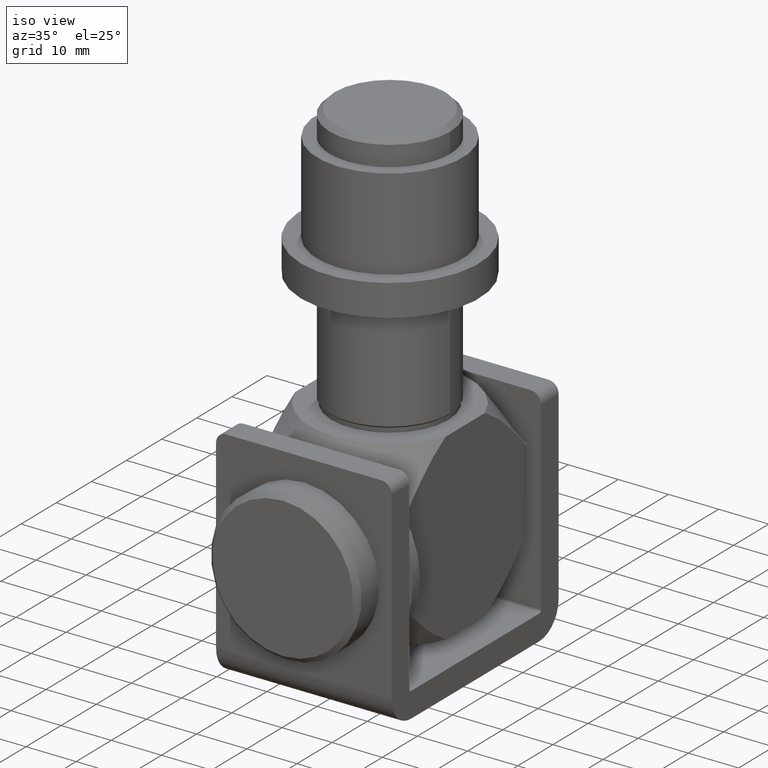
[diagram: clean part render]
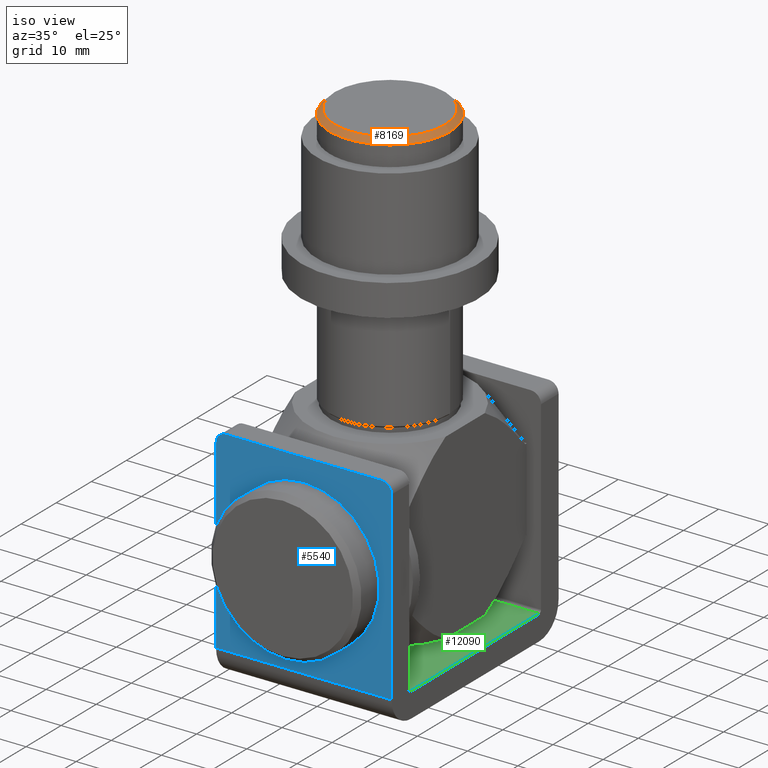
[diagram: same view with three faces highlighted in distinct colors, each labeled with its STEP entity id]
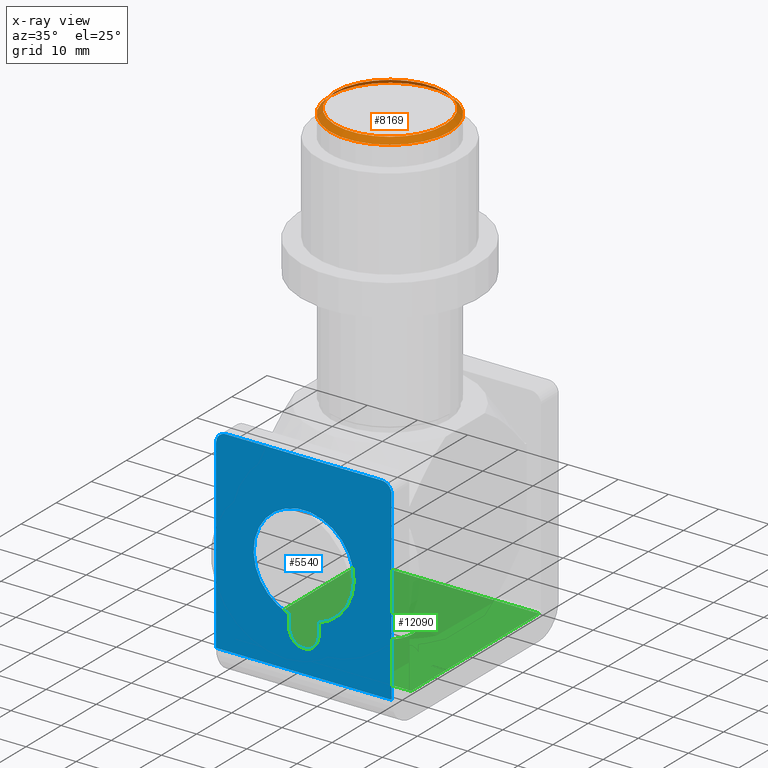
[diagram: x-ray of the same camera — body ghosted, the three highlighted faces saturated]
A machine part, iso view with three faces highlighted in distinct colors.
The next image is the same camera in x-ray (body ghosted, the three faces saturated) — at least one of them is partly hidden behind the body in this view.
Their STEP definitions:

[orange] entity #8169 — the highlighted conical surface has half-angle 45 deg.
#758 = DIRECTION ( 'NONE',  ( 0.000000000000000000, 0.000000000000000000, -1.000000000000000000 ) ) ;
#1041 = CIRCLE ( 'NONE', #6038, 11.00000000000001066 ) ;
#1842 = ORIENTED_EDGE ( 'NONE', *, *, #5073, .F. ) ;
#2077 = VERTEX_POINT ( 'NONE', #4092 ) ;
#3279 = EDGE_LOOP ( 'NONE', ( #1842 ) ) ;
#4092 = CARTESIAN_POINT ( 'NONE',  ( 12.00000000000000178, 0.000000000000000000, 70.25000000000000000 ) ) ;
#5073 = EDGE_CURVE ( 'NONE', #2077, #2077, #9360, .T. ) ;
#6038 = AXIS2_PLACEMENT_3D ( 'NONE', #6406, #11042, #9853 ) ;
#6366 = DIRECTION ( 'NONE',  ( 1.000000000000000000, 0.000000000000000000, 0.000000000000000000 ) ) ;
#6406 = CARTESIAN_POINT ( 'NONE',  ( 0.000000000000000000, 0.000000000000000000, 71.25000000000000000 ) ) ;
#7127 = VERTEX_POINT ( 'NONE', #14038 ) ;
#7676 = CARTESIAN_POINT ( 'NONE',  ( 0.000000000000000000, 0.000000000000000000, 71.25000000000000000 ) ) ;
#8169 = ADVANCED_FACE ( 'NONE', ( #13381, #10320 ), #10874, .T. ) ;
#8225 = AXIS2_PLACEMENT_3D ( 'NONE', #7676, #758, #14399 ) ;
#9360 = CIRCLE ( 'NONE', #11553, 12.00000000000000178 ) ;
#9613 = EDGE_LOOP ( 'NONE', ( #10637 ) ) ;
#9853 = DIRECTION ( 'NONE',  ( 1.000000000000000000, 0.000000000000000000, 0.000000000000000000 ) ) ;
#10320 = FACE_BOUND ( 'NONE', #9613, .T. ) ;
#10637 = ORIENTED_EDGE ( 'NONE', *, *, #13308, .F. ) ;
#10874 = CONICAL_SURFACE ( 'NONE', #8225, 11.00000000000001066, 0.7853981633974509435 ) ;
#11042 = DIRECTION ( 'NONE',  ( 0.000000000000000000, 0.000000000000000000, 1.000000000000000000 ) ) ;
#11553 = AXIS2_PLACEMENT_3D ( 'NONE', #14254, #12086, #6366 ) ;
#12086 = DIRECTION ( 'NONE',  ( 0.000000000000000000, 0.000000000000000000, -1.000000000000000000 ) ) ;
#13308 = EDGE_CURVE ( 'NONE', #7127, #7127, #1041, .T. ) ;
#13381 = FACE_OUTER_BOUND ( 'NONE', #3279, .T. ) ;
#14038 = CARTESIAN_POINT ( 'NONE',  ( 11.00000000000001066, 0.000000000000000000, 71.25000000000000000 ) ) ;
#14254 = CARTESIAN_POINT ( 'NONE',  ( 0.000000000000000000, 0.000000000000000000, 70.25000000000000000 ) ) ;
#14399 = DIRECTION ( 'NONE',  ( -1.000000000000000000, 0.000000000000000000, 0.000000000000000000 ) ) ;

[blue] entity #5540 — the highlighted planar face has unit normal (0, -1, 0).
#15 = AXIS2_PLACEMENT_3D ( 'NONE', #10182, #8992, #7990 ) ;
#889 = VERTEX_POINT ( 'NONE', #11197 ) ;
#894 = LINE ( 'NONE', #10870, #12408 ) ;
#912 = ORIENTED_EDGE ( 'NONE', *, *, #14257, .T. ) ;
#1301 = CIRCLE ( 'NONE', #2318, 2.000000000000001776 ) ;
#1398 = CARTESIAN_POINT ( 'NONE',  ( 17.50000000000000000, -23.75000000000000711, 5.499999999999995559 ) ) ;
#1419 = LINE ( 'NONE', #8717, #8091 ) ;
#1425 = CARTESIAN_POINT ( 'NONE',  ( 3.000000000000000000, -23.75000000000000711, 12.99999999999999822 ) ) ;
#1489 = CARTESIAN_POINT ( 'NONE',  ( -17.50000000000000000, -23.75000000000000711, 42.49999999999998579 ) ) ;
#1649 = VERTEX_POINT ( 'NONE', #11433 ) ;
#1867 = ORIENTED_EDGE ( 'NONE', *, *, #14501, .T. ) ;
#2016 = DIRECTION ( 'NONE',  ( 0.000000000000000000, 0.000000000000000000, -1.000000000000000000 ) ) ;
#2211 = AXIS2_PLACEMENT_3D ( 'NONE', #1398, #10503, #12704 ) ;
#2233 = VERTEX_POINT ( 'NONE', #1489 ) ;
#2272 = LINE ( 'NONE', #4164, #14155 ) ;
#2318 = AXIS2_PLACEMENT_3D ( 'NONE', #4509, #12448, #6723 ) ;
#2580 = CARTESIAN_POINT ( 'NONE',  ( 3.000000000000000000, -23.75000000000000711, -2.014613153511925167E-15 ) ) ;
#2845 = VECTOR ( 'NONE', #13987, 1000.000000000000000 ) ;
#2943 = CARTESIAN_POINT ( 'NONE',  ( 3.000000000000000000, -23.75000000000000355, 15.46060798583053497 ) ) ;
#3153 = CARTESIAN_POINT ( 'NONE',  ( -3.000000000000000000, -23.75000000000001066, 15.46060798583053497 ) ) ;
#3323 = ORIENTED_EDGE ( 'NONE', *, *, #5633, .F. ) ;
#4077 = EDGE_CURVE ( 'NONE', #889, #10476, #12771, .T. ) ;
#4111 = LINE ( 'NONE', #2580, #2845 ) ;
#4164 = CARTESIAN_POINT ( 'NONE',  ( 17.50000000000000000, -23.75000000000000711, 5.499999999999995559 ) ) ;
#4509 = CARTESIAN_POINT ( 'NONE',  ( -15.50000000000000000, -23.75000000000000711, 42.49999999999998579 ) ) ;
#4596 = DIRECTION ( 'NONE',  ( 0.000000000000000000, 8.482581698997577797E-17, -1.000000000000000000 ) ) ;
#4938 = VERTEX_POINT ( 'NONE', #11882 ) ;
#5077 = DIRECTION ( 'NONE',  ( -1.000000000000000000, -0.000000000000000000, -0.000000000000000000 ) ) ;
#5136 = CARTESIAN_POINT ( 'NONE',  ( 15.50000000000000178, -23.75000000000000711, 42.49999999999998579 ) ) ;
#5285 = EDGE_CURVE ( 'NONE', #12184, #2233, #14210, .T. ) ;
#5414 = FACE_OUTER_BOUND ( 'NONE', #8382, .T. ) ;
#5472 = ORIENTED_EDGE ( 'NONE', *, *, #12405, .T. ) ;
#5540 = ADVANCED_FACE ( 'NONE', ( #9888, #5414 ), #6029, .T. ) ;
#5633 = EDGE_CURVE ( 'NONE', #1649, #12184, #894, .T. ) ;
#5750 = AXIS2_PLACEMENT_3D ( 'NONE', #5136, #11913, #13269 ) ;
#5795 = EDGE_CURVE ( 'NONE', #10476, #4938, #1419, .T. ) ;
#6029 = PLANE ( 'NONE',  #2211 ) ;
#6393 = DIRECTION ( 'NONE',  ( -1.000000000000000000, -0.000000000000000000, -0.000000000000000000 ) ) ;
#6723 = DIRECTION ( 'NONE',  ( 0.000000000000000000, 0.000000000000000000, -1.000000000000000000 ) ) ;
#6751 = ORIENTED_EDGE ( 'NONE', *, *, #4077, .T. ) ;
#7021 = ORIENTED_EDGE ( 'NONE', *, *, #8729, .T. ) ;
#7389 = VECTOR ( 'NONE', #8048, 1000.000000000000000 ) ;
#7859 = AXIS2_PLACEMENT_3D ( 'NONE', #7923, #11378, #2016 ) ;
#7923 = CARTESIAN_POINT ( 'NONE',  ( 0.000000000000000000, -23.75000000000000711, 12.99999999999999822 ) ) ;
#7990 = DIRECTION ( 'NONE',  ( 0.000000000000000000, 0.000000000000000000, 1.000000000000000000 ) ) ;
#8048 = DIRECTION ( 'NONE',  ( 0.000000000000000000, 0.000000000000000000, 1.000000000000000000 ) ) ;
#8091 = VECTOR ( 'NONE', #6393, 1000.000000000000000 ) ;
#8223 = VERTEX_POINT ( 'NONE', #2943 ) ;
#8276 = CIRCLE ( 'NONE', #15, 10.00000000000000178 ) ;
#8382 = EDGE_LOOP ( 'NONE', ( #1867, #6751, #11859, #7021, #9568, #3323 ) ) ;
#8717 = CARTESIAN_POINT ( 'NONE',  ( 17.50000000000000000, -23.75000000000000711, 44.49999999999999289 ) ) ;
#8729 = EDGE_CURVE ( 'NONE', #4938, #2233, #1301, .T. ) ;
#8992 = DIRECTION ( 'NONE',  ( 0.000000000000000000, 1.000000000000000000, -9.912705577010328015E-17 ) ) ;
#9568 = ORIENTED_EDGE ( 'NONE', *, *, #5285, .F. ) ;
#9888 = FACE_BOUND ( 'NONE', #13311, .T. ) ;
#9960 = EDGE_CURVE ( 'NONE', #12375, #11467, #11715, .T. ) ;
#10182 = CARTESIAN_POINT ( 'NONE',  ( 0.000000000000000000, -23.75000000000000355, 24.99999999999999289 ) ) ;
#10233 = CARTESIAN_POINT ( 'NONE',  ( -3.000000000000000000, -23.75000000000000711, 12.99999999999999822 ) ) ;
#10476 = VERTEX_POINT ( 'NONE', #12171 ) ;
#10503 = DIRECTION ( 'NONE',  ( 0.000000000000000000, -1.000000000000000000, 0.000000000000000000 ) ) ;
#10870 = CARTESIAN_POINT ( 'NONE',  ( 17.50000000000000000, -23.75000000000000355, 5.499999999999994671 ) ) ;
#11197 = CARTESIAN_POINT ( 'NONE',  ( 17.50000000000000000, -23.75000000000000711, 42.49999999999998579 ) ) ;
#11378 = DIRECTION ( 'NONE',  ( 0.000000000000000000, -1.000000000000000000, -8.482581698997577797E-17 ) ) ;
#11433 = CARTESIAN_POINT ( 'NONE',  ( 17.50000000000000000, -23.75000000000000355, 5.499999999999994671 ) ) ;
#11451 = CARTESIAN_POINT ( 'NONE',  ( -17.50000000000000000, -23.75000000000000711, 5.499999999999995559 ) ) ;
#11467 = VERTEX_POINT ( 'NONE', #1425 ) ;
#11715 = CIRCLE ( 'NONE', #7859, 2.999999999999999112 ) ;
#11859 = ORIENTED_EDGE ( 'NONE', *, *, #5795, .T. ) ;
#11882 = CARTESIAN_POINT ( 'NONE',  ( -15.50000000000000000, -23.75000000000000711, 44.49999999999999289 ) ) ;
#11913 = DIRECTION ( 'NONE',  ( 0.000000000000000000, -1.000000000000000000, 0.000000000000000000 ) ) ;
#12171 = CARTESIAN_POINT ( 'NONE',  ( 15.50000000000000178, -23.75000000000000711, 44.49999999999999289 ) ) ;
#12184 = VERTEX_POINT ( 'NONE', #12737 ) ;
#12375 = VERTEX_POINT ( 'NONE', #10233 ) ;
#12405 = EDGE_CURVE ( 'NONE', #14451, #8223, #8276, .T. ) ;
#12406 = VECTOR ( 'NONE', #4596, 1000.000000000000000 ) ;
#12408 = VECTOR ( 'NONE', #5077, 1000.000000000000000 ) ;
#12448 = DIRECTION ( 'NONE',  ( 0.000000000000000000, -1.000000000000000000, 0.000000000000000000 ) ) ;
#12544 = EDGE_CURVE ( 'NONE', #14451, #12375, #13998, .T. ) ;
#12704 = DIRECTION ( 'NONE',  ( 0.000000000000000000, -0.000000000000000000, -1.000000000000000000 ) ) ;
#12737 = CARTESIAN_POINT ( 'NONE',  ( -17.50000000000000000, -23.75000000000000355, 5.499999999999994671 ) ) ;
#12771 = CIRCLE ( 'NONE', #5750, 2.000000000000001776 ) ;
#13269 = DIRECTION ( 'NONE',  ( 0.000000000000000000, 0.000000000000000000, -1.000000000000000000 ) ) ;
#13311 = EDGE_LOOP ( 'NONE', ( #14294, #5472, #912, #13755 ) ) ;
#13755 = ORIENTED_EDGE ( 'NONE', *, *, #9960, .F. ) ;
#13798 = CARTESIAN_POINT ( 'NONE',  ( -3.000000000000000000, -23.75000000000000711, -2.014613153511925167E-15 ) ) ;
#13987 = DIRECTION ( 'NONE',  ( 0.000000000000000000, 8.482581698997577797E-17, -1.000000000000000000 ) ) ;
#13998 = LINE ( 'NONE', #13798, #12406 ) ;
#14155 = VECTOR ( 'NONE', #14507, 1000.000000000000000 ) ;
#14210 = LINE ( 'NONE', #11451, #7389 ) ;
#14257 = EDGE_CURVE ( 'NONE', #8223, #11467, #4111, .T. ) ;
#14294 = ORIENTED_EDGE ( 'NONE', *, *, #12544, .F. ) ;
#14451 = VERTEX_POINT ( 'NONE', #3153 ) ;
#14501 = EDGE_CURVE ( 'NONE', #1649, #889, #2272, .T. ) ;
#14507 = DIRECTION ( 'NONE',  ( 0.000000000000000000, 0.000000000000000000, 1.000000000000000000 ) ) ;

[green] entity #12090 — the highlighted planar face has unit normal (0, 0, -1).
#35 = VERTEX_POINT ( 'NONE', #1796 ) ;
#103 = VERTEX_POINT ( 'NONE', #5142 ) ;
#196 = LINE ( 'NONE', #3259, #9579 ) ;
#774 = EDGE_LOOP ( 'NONE', ( #5856 ) ) ;
#1053 = EDGE_CURVE ( 'NONE', #12094, #2985, #1699, .T. ) ;
#1244 = VECTOR ( 'NONE', #4568, 1000.000000000000000 ) ;
#1359 = AXIS2_PLACEMENT_3D ( 'NONE', #3579, #12763, #3389 ) ;
#1699 = LINE ( 'NONE', #9250, #3160 ) ;
#1796 = CARTESIAN_POINT ( 'NONE',  ( 17.50000000000000000, -18.25000000000000355, 4.999999999999995559 ) ) ;
#2349 = EDGE_CURVE ( 'NONE', #103, #103, #11397, .T. ) ;
#2985 = VERTEX_POINT ( 'NONE', #4022 ) ;
#3160 = VECTOR ( 'NONE', #5736, 1000.000000000000000 ) ;
#3259 = CARTESIAN_POINT ( 'NONE',  ( 17.50000000000000000, -18.25000000000000355, 4.999999999999995559 ) ) ;
#3317 = EDGE_CURVE ( 'NONE', #35, #11629, #196, .T. ) ;
#3389 = DIRECTION ( 'NONE',  ( 1.000000000000000000, 0.000000000000000000, 0.000000000000000000 ) ) ;
#3579 = CARTESIAN_POINT ( 'NONE',  ( 0.000000000000000000, 0.000000000000000000, 4.999999999999995559 ) ) ;
#3778 = FACE_OUTER_BOUND ( 'NONE', #8631, .T. ) ;
#4022 = CARTESIAN_POINT ( 'NONE',  ( -17.50000000000000000, 18.25000000000000355, 4.999999999999995559 ) ) ;
#4568 = DIRECTION ( 'NONE',  ( 0.000000000000000000, -1.000000000000000000, 0.000000000000000000 ) ) ;
#5142 = CARTESIAN_POINT ( 'NONE',  ( 5.099999999999999645, 0.000000000000000000, 4.999999999999995559 ) ) ;
#5167 = EDGE_CURVE ( 'NONE', #12094, #35, #5756, .T. ) ;
#5679 = DIRECTION ( 'NONE',  ( -1.000000000000000000, 0.000000000000000000, -0.000000000000000000 ) ) ;
#5736 = DIRECTION ( 'NONE',  ( -1.000000000000000000, -0.000000000000000000, -0.000000000000000000 ) ) ;
#5756 = LINE ( 'NONE', #11548, #1244 ) ;
#5856 = ORIENTED_EDGE ( 'NONE', *, *, #2349, .F. ) ;
#5997 = LINE ( 'NONE', #12228, #12305 ) ;
#6826 = FACE_BOUND ( 'NONE', #774, .T. ) ;
#7152 = ORIENTED_EDGE ( 'NONE', *, *, #5167, .F. ) ;
#7856 = DIRECTION ( 'NONE',  ( 0.000000000000000000, 0.000000000000000000, -1.000000000000000000 ) ) ;
#8234 = EDGE_CURVE ( 'NONE', #2985, #11629, #5997, .T. ) ;
#8631 = EDGE_LOOP ( 'NONE', ( #9668, #11485, #7152, #13869 ) ) ;
#9023 = CARTESIAN_POINT ( 'NONE',  ( -17.50000000000000000, -18.25000000000000355, 4.999999999999995559 ) ) ;
#9250 = CARTESIAN_POINT ( 'NONE',  ( 17.50000000000000000, 18.25000000000000355, 4.999999999999995559 ) ) ;
#9579 = VECTOR ( 'NONE', #10179, 1000.000000000000000 ) ;
#9668 = ORIENTED_EDGE ( 'NONE', *, *, #8234, .T. ) ;
#9801 = CARTESIAN_POINT ( 'NONE',  ( 17.50000000000000000, 18.25000000000000355, 4.999999999999995559 ) ) ;
#10051 = CARTESIAN_POINT ( 'NONE',  ( 17.50000000000000000, 18.25000000000000355, 4.999999999999995559 ) ) ;
#10179 = DIRECTION ( 'NONE',  ( -1.000000000000000000, -0.000000000000000000, -0.000000000000000000 ) ) ;
#11397 = CIRCLE ( 'NONE', #1359, 5.099999999999999645 ) ;
#11485 = ORIENTED_EDGE ( 'NONE', *, *, #3317, .F. ) ;
#11548 = CARTESIAN_POINT ( 'NONE',  ( 17.50000000000000000, 18.25000000000000355, 4.999999999999995559 ) ) ;
#11629 = VERTEX_POINT ( 'NONE', #9023 ) ;
#12090 = ADVANCED_FACE ( 'NONE', ( #6826, #3778 ), #13618, .F. ) ;
#12094 = VERTEX_POINT ( 'NONE', #9801 ) ;
#12228 = CARTESIAN_POINT ( 'NONE',  ( -17.50000000000000000, 18.25000000000000355, 4.999999999999995559 ) ) ;
#12305 = VECTOR ( 'NONE', #13336, 1000.000000000000000 ) ;
#12641 = AXIS2_PLACEMENT_3D ( 'NONE', #10051, #7856, #5679 ) ;
#12763 = DIRECTION ( 'NONE',  ( 0.000000000000000000, 0.000000000000000000, 1.000000000000000000 ) ) ;
#13336 = DIRECTION ( 'NONE',  ( 0.000000000000000000, -1.000000000000000000, 0.000000000000000000 ) ) ;
#13618 = PLANE ( 'NONE',  #12641 ) ;
#13869 = ORIENTED_EDGE ( 'NONE', *, *, #1053, .T. ) ;